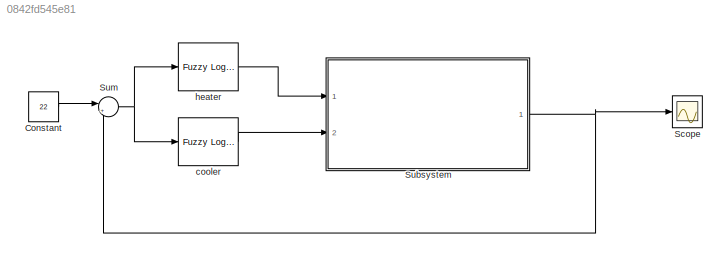
MODEL slx_0842fd545e81
KIND model
BLOCK [Constant] Constant
  Value = 22
BLOCK [Scope] Scope
  DataFormat = StructureWithTime
  Floating = off
  NumInputPorts = 1
  Ports = [1]
  SampleTime = 0
  ShowLegends = off
  ZoomMode = xonly
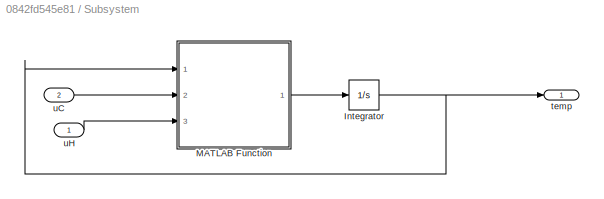
BLOCK [SubSystem] Subsystem
  Ports = [2, 1]
  RequestExecContextInheritance = off
BLOCK [Integrator] Subsystem/Integrator
  Ports = [1, 1]
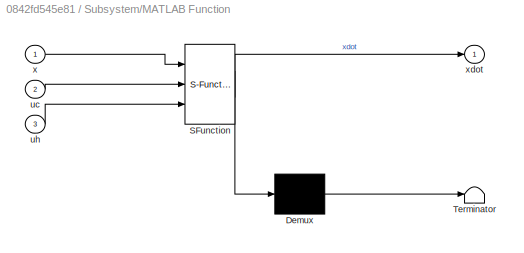
BLOCK [SubSystem] Subsystem/MATLAB Function
  ErrorFcn = Stateflow.Translate.translate
  PermitHierarchicalResolution = ExplicitOnly
  Ports = [3, 1]
  RequestExecContextInheritance = off
  SFBlockType = MATLAB Function
  TreatAsAtomicUnit = on
BLOCK [Demux] Subsystem/MATLAB Function/ Demux 
  Outputs = 1
  Ports = [1, 1]
BLOCK [S-Function] Subsystem/MATLAB Function/ SFunction 
  EnableBusSupport = on
  FunctionName = sf_sfun
  PortCounts = [3 2]
  Ports = [3, 2]
  Tag = Stateflow S-Function fuzzyConditioner 2
BLOCK [Terminator] Subsystem/MATLAB Function/ Terminator 
BLOCK [Inport] Subsystem/MATLAB Function/uc
  IconDisplay = Port number
  Port = 2
BLOCK [Inport] Subsystem/MATLAB Function/uh
  IconDisplay = Port number
  Port = 3
BLOCK [Inport] Subsystem/MATLAB Function/x
  IconDisplay = Port number
BLOCK [Outport] Subsystem/MATLAB Function/xdot
  IconDisplay = Port number
BLOCK [Outport] Subsystem/temp
  IconDisplay = Port number
BLOCK [Inport] Subsystem/uC
  IconDisplay = Port number
  Port = 2
BLOCK [Inport] Subsystem/uH
  IconDisplay = Port number
BLOCK [Sum] Sum
  IconShape = round
  InputSameDT = off
  Inputs = |+-
  OutDataTypeStr = Inherit: Inherit via internal rule
  Ports = [2, 1]
  SaturateOnIntegerOverflow = off
BLOCK [Reference] cooler  REF=fuzblock/Fuzzy Logic   (lib defined in mdl_858b3b3e7478)
Controller
  Ports = [1, 1]
  SourceBlock = fuzblock/Fuzzy Logic \nController
  SourceType = FIS
  fis = 'cooler'
BLOCK [Reference] heater  REF=fuzblock/Fuzzy Logic   (lib defined in mdl_858b3b3e7478)
Controller
  Ports = [1, 1]
  SourceBlock = fuzblock/Fuzzy Logic \nController
  SourceType = FIS
  fis = 'heater.fis'
LINE Constant:1 -> Sum:1
NET Subsystem/Integrator:1 -> Subsystem/MATLAB Function:1, Subsystem/temp:1
LINE Subsystem/MATLAB Function:1 -> Subsystem/Integrator:1
LINE Subsystem/uC:1 -> Subsystem/MATLAB Function:2
LINE Subsystem/uH:1 -> Subsystem/MATLAB Function:3
NET Subsystem:1 -> Scope:1, Sum:2
NET Sum:1 -> cooler:1, heater:1
LINE cooler:1 -> Subsystem:2
LINE heater:1 -> Subsystem:1
note: NET lines group one-source signal fan-out (src -> all destinations, sorted); 1:1 wires keep LINE
